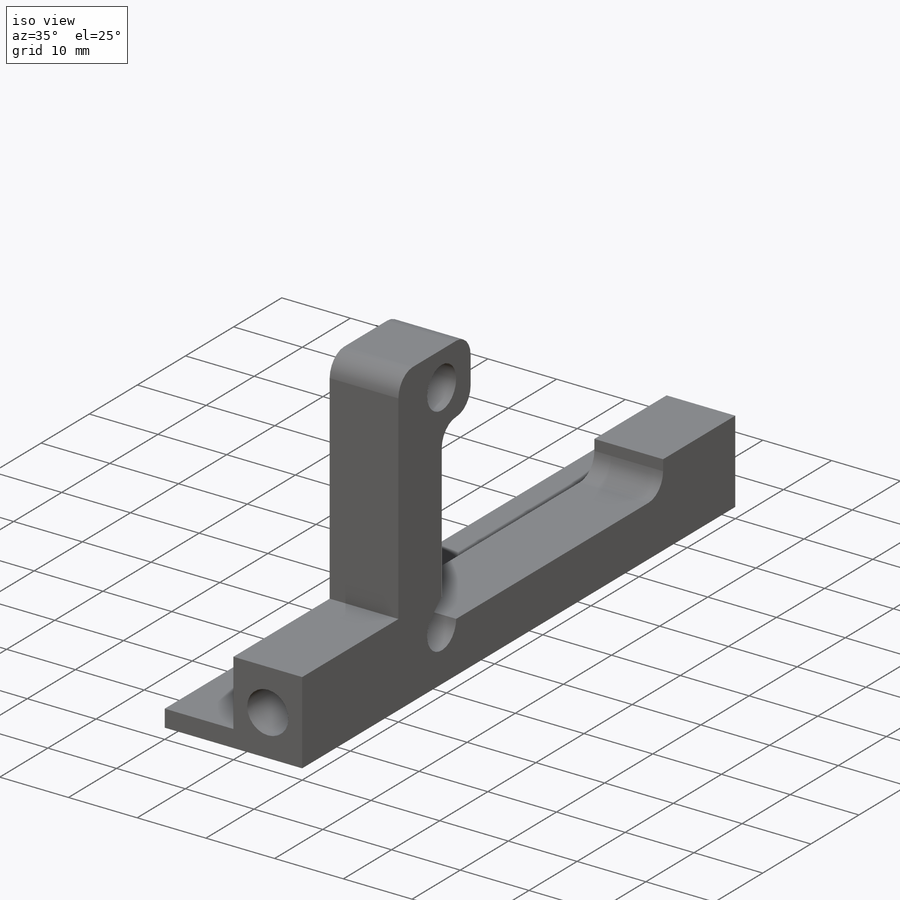
[diagram: iso view]
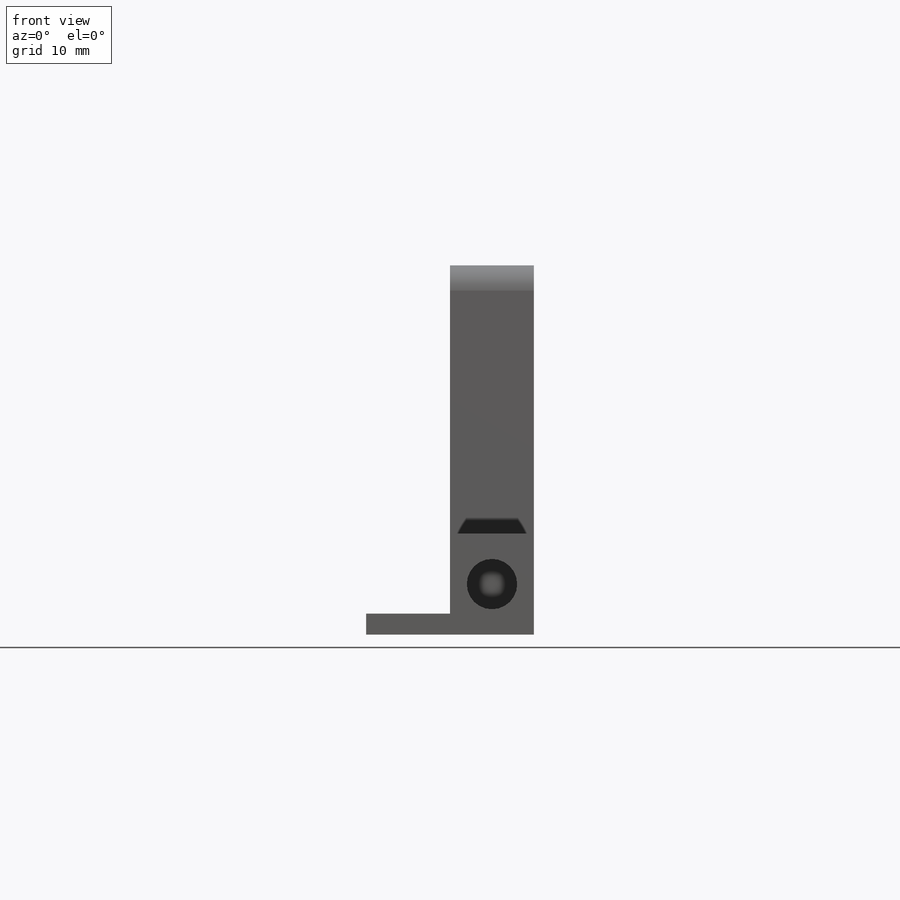
[diagram: front view]
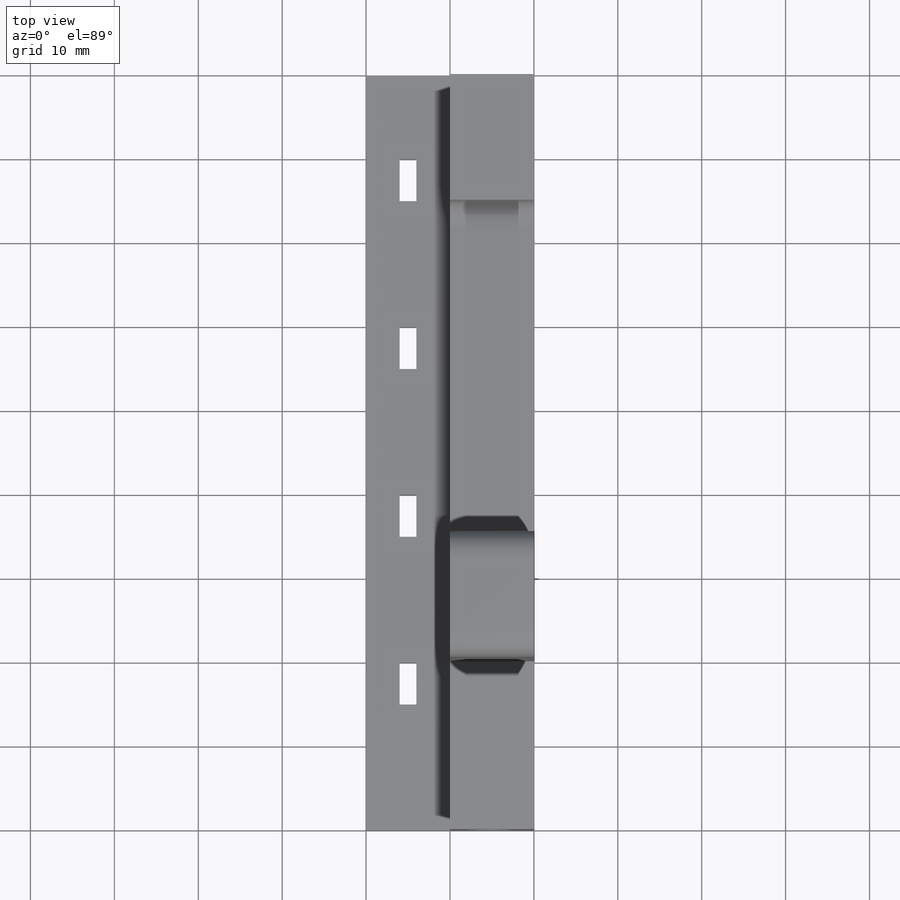
[diagram: top view]
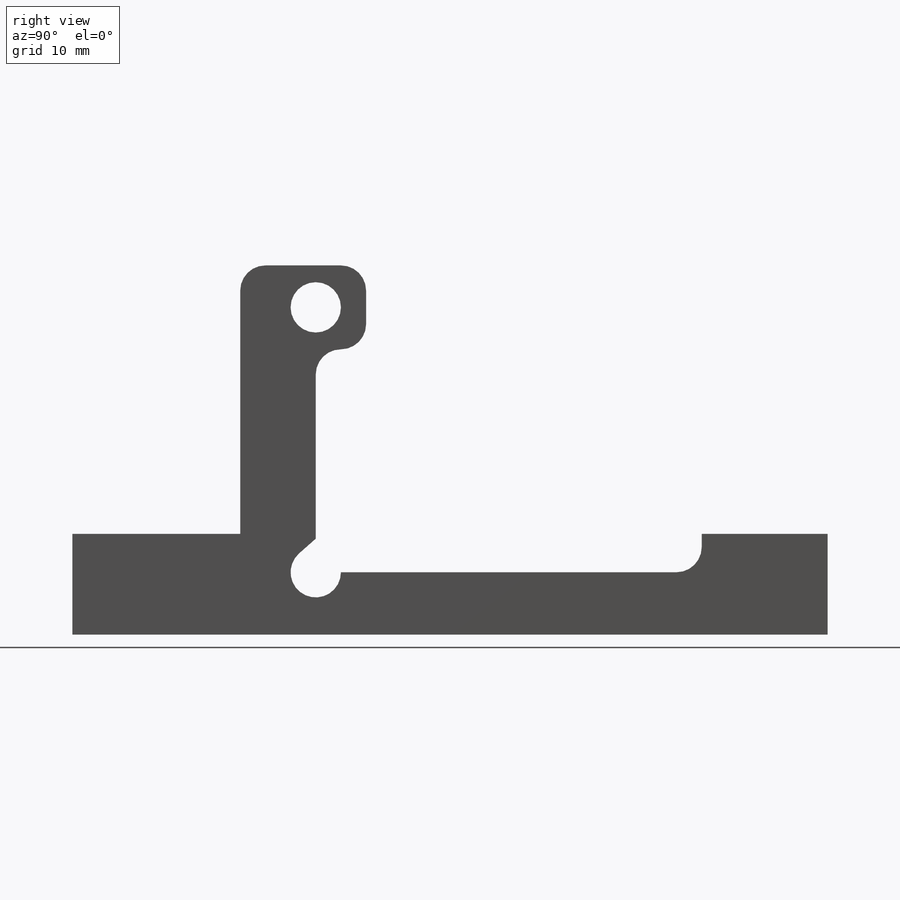
[diagram: right view]
SOLIDWORKS PART (.sldprt)
format: sldprt  version: not decoded by parser v0  size: 236,032 bytes
history: native  units: mm
features: sketch x5, plane x3, cut_extrude x3, extrude x2, material x1, fillet x1, pattern_linear x1 (+13 scaffold rows collapsed)
feature tree (29):
  scaffold x13  (default folders/planes/origin — collapsed)
  material  "Material <não especificado>"
  plane  "Plano frontal"
  plane  "Plano superior"
  plane  "Plano direito"
  sketch  "Esboço1"  dims[c1.D1=6.0mm c1.D4=6.0mm c1.D5=6.0mm c1.D2=39.0mm c1.D3=15.0mm c2.D4=6.0mm c2.D6=44.0mm c2.D7=10.0mm c2.D8=9.0mm c2.D9=70.0mm c2.D10=15.0mm c2.D11=7.43mm c2.D12=20.0mm c2.D13=12.0mm c2.D14=4.0mm]
  extrude  "Ressalto-extrusão1"  Depth=10mm
  sketch  "Esboço2"  dims[c1.D1=~4.643991mm c1.D2=6.0mm c2.D1=6.0mm]
  cut_extrude  "Corte-extrusão1"  Depth=10mm
  cut_extrude  "Corte-extrusão2"  [1 undecoded]
  sketch  "Esboço2<2>"  dims[D1=10.0mm]
  fillet  "Filete1"  Radius=3mm
  sketch  "Esboço3"  dims[D1=2.5mm]
  extrude  "Ressalto-extrusão2"  Depth=10mm
  sketch  "Esboço4"  dims[D1=5.0mm D2=2.0mm D3=4.0mm D4=10.0mm]
  cut_extrude  "Corte-extrusão3"  Depth=10mm
  pattern_linear  "Padrão linear1"  Count1=4 Count2=1 Spacing1=20mm Spacing2=10mm
decode coverage: 11 of 12 modeling features carry decoded parameters
note: ~ marks probable driven/reference dimensions
note: 1 parameter value undecoded
note: suppression state not decoded; provenance and decode notes live in map.json
